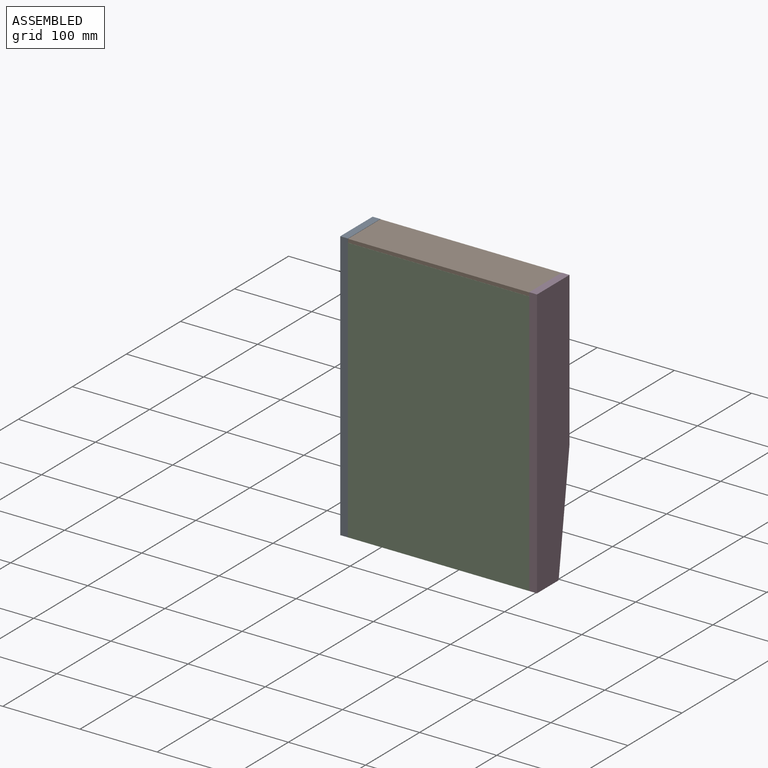
[diagram: assembled view]
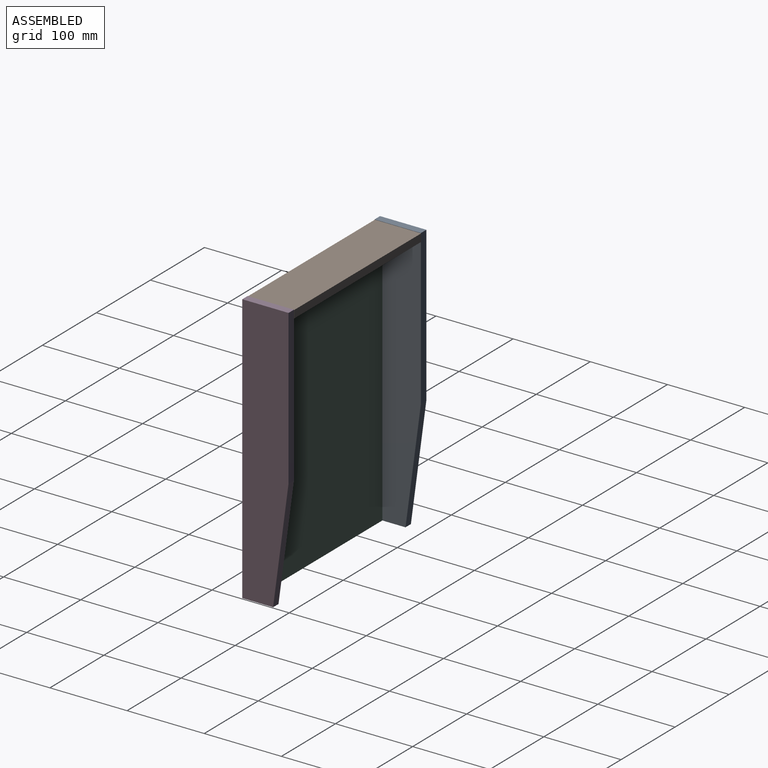
[diagram: assembled view, second angle]
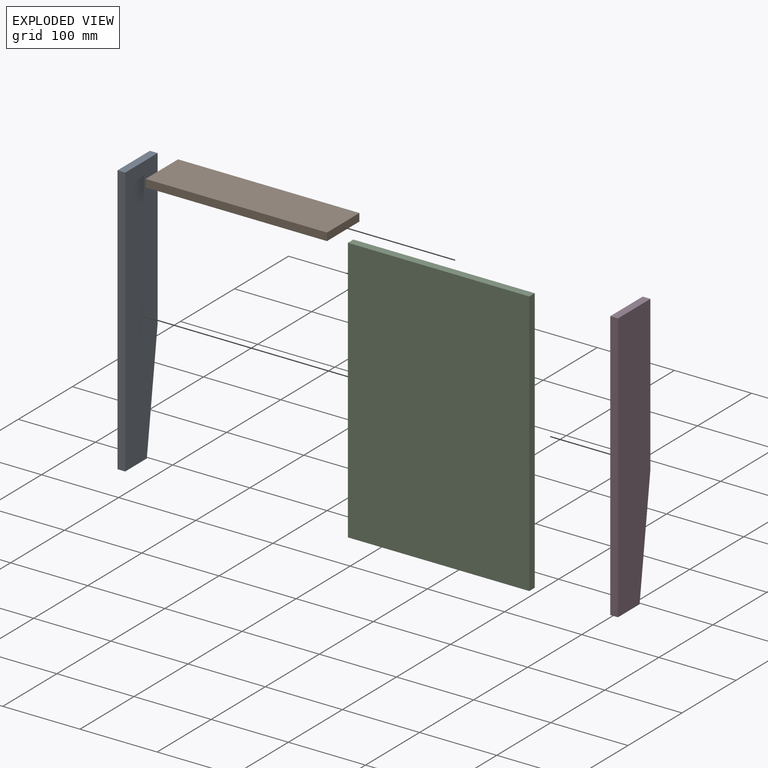
[diagram: exploded view]
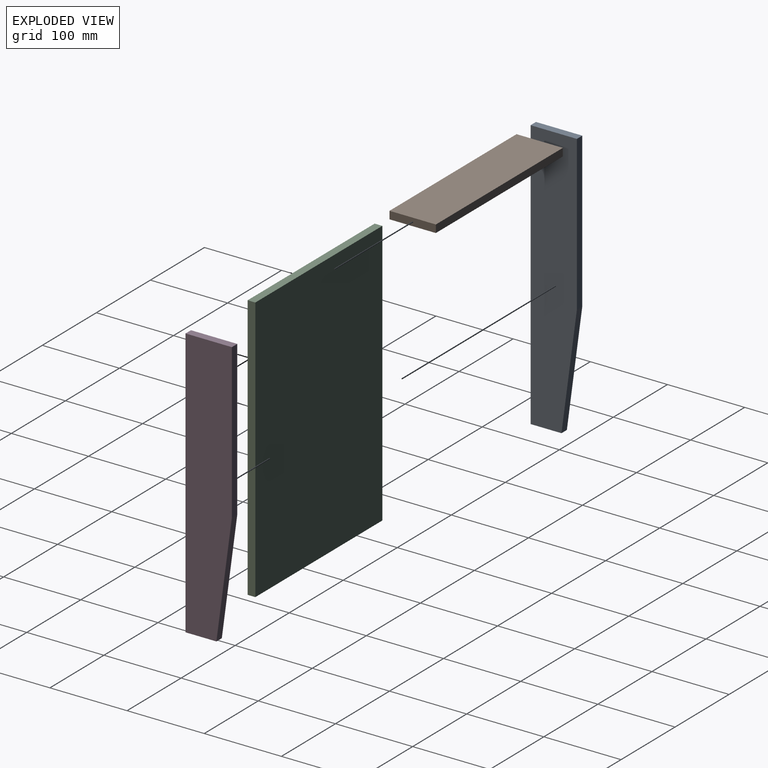
[diagram: exploded view, second angle]
ASSEMBLY  parts=4 mates=3
PART A: 7 faces, bbox 60x10x350 mm
  f0: plane 60x10mm, normal (0,0,1), area 600mm2, adj f1,f4,f5,f6
  f1: plane 200x10mm, normal (-1,0,0), area 2000mm2, adj f0,f2,f5,f6
  f2: plane 150x20mm, normal (-0.99,0,-0.13), area 1513.3mm2, adj f1,f3,f5,f6
  f3: plane 40x10mm, normal (0,0,-1), area 400mm2, adj f2,f4,f5,f6
  f4: plane 350x10mm, normal (1,0,0), area 3500mm2, adj f0,f3,f5,f6
  f5: plane 350x60mm, normal (0,-1,0), area 19500mm2, adj f0,f1,f2,f3,f4
  f6: plane 350x60mm, normal (0,1,0), area 19500mm2, adj f0,f1,f2,f3,f4
PART B: 6 faces, bbox 60x10x235 mm
  f0: plane 60x10mm, normal (0,0,1), area 600mm2, adj f1,f3,f4,f5
  f1: plane 235x10mm, normal (-1,0,0), area 2350mm2, adj f0,f2,f4,f5
  f2: plane 60x10mm, normal (0,0,-1), area 600mm2, adj f1,f3,f4,f5
  f3: plane 235x10mm, normal (1,0,0), area 2350mm2, adj f0,f2,f4,f5
  f4: plane 235x60mm, normal (0,-1,0), area 14100mm2, adj f0,f1,f2,f3
  f5: plane 235x60mm, normal (0,1,0), area 14100mm2, adj f0,f1,f2,f3
PART C: 6 faces, bbox 235x10x345 mm
  f0: plane 235x10mm, normal (0,0,1), area 2350mm2, adj f1,f3,f4,f5
  f1: plane 345x10mm, normal (-1,0,0), area 3450mm2, adj f0,f2,f4,f5
  f2: plane 235x10mm, normal (0,0,-1), area 2350mm2, adj f1,f3,f4,f5
  f3: plane 345x10mm, normal (1,0,0), area 3450mm2, adj f0,f2,f4,f5
  f4: plane 345x235mm, normal (0,-1,0), area 81075mm2, adj f0,f1,f2,f3
  f5: plane 345x235mm, normal (0,1,0), area 81075mm2, adj f0,f1,f2,f3
PART D: same geometry as A
PLACE A rot(axis=(0,0,-1),90deg) t=(-35.15,-78.55,2.5)mm
PLACE B rot(axis=(-0.58,-0.58,0.58),120deg) t=(150.96,-22.7,173.28)mm
PLACE C rot(axis=(-0.27,-0.71,-0.65),0deg) t=(92.1,-43.89,-10)mm
PLACE D rot(axis=(0,0,-1),90deg) t=(209.85,-78.55,2.5)mm fixed
MATE fastened D.f5 <-> B.f2  axis (-1,0,0) through (199.85,-25.68,18.28)mm
MATE fastened C.f1 <-> A.f6  axis (-1,0,0) through (-35.15,-53.89,6.17)mm
MATE fastened D.f5 <-> C.f3  axis (-1,0,0) through (199.85,-53.89,8.67)mm
